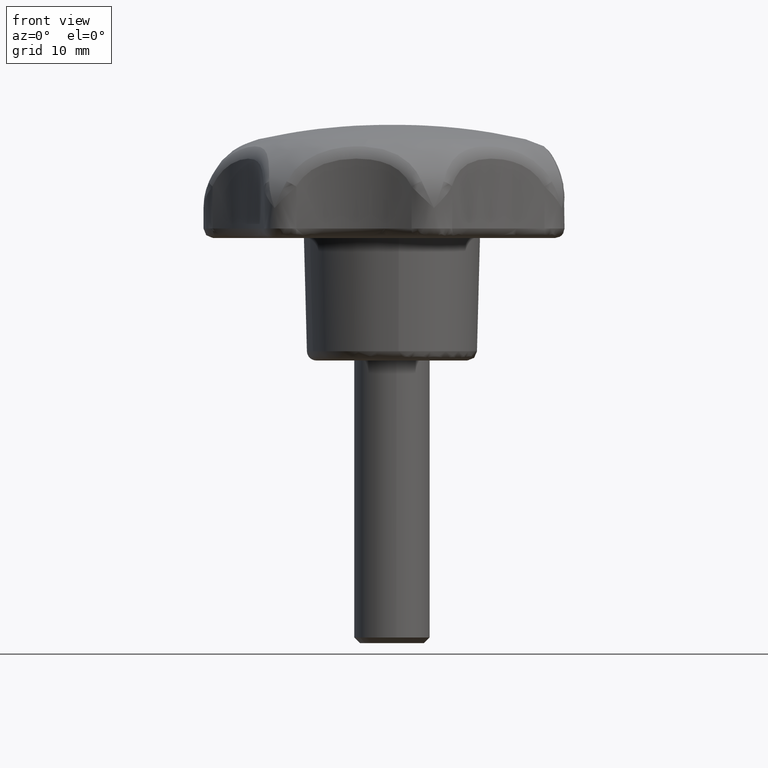
[diagram: clean part render]
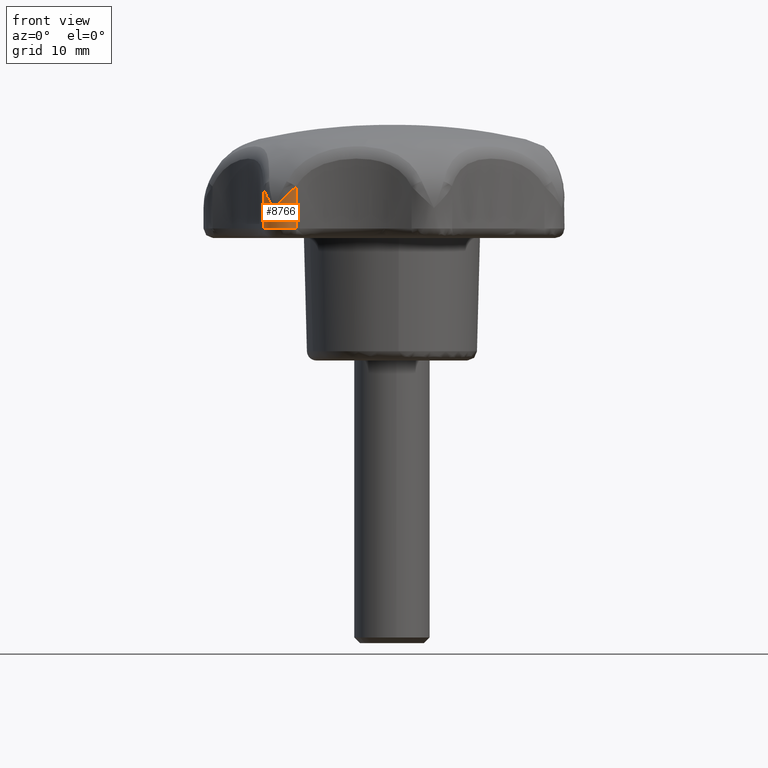
[diagram: same view with one face highlighted and labeled with its STEP entity id]
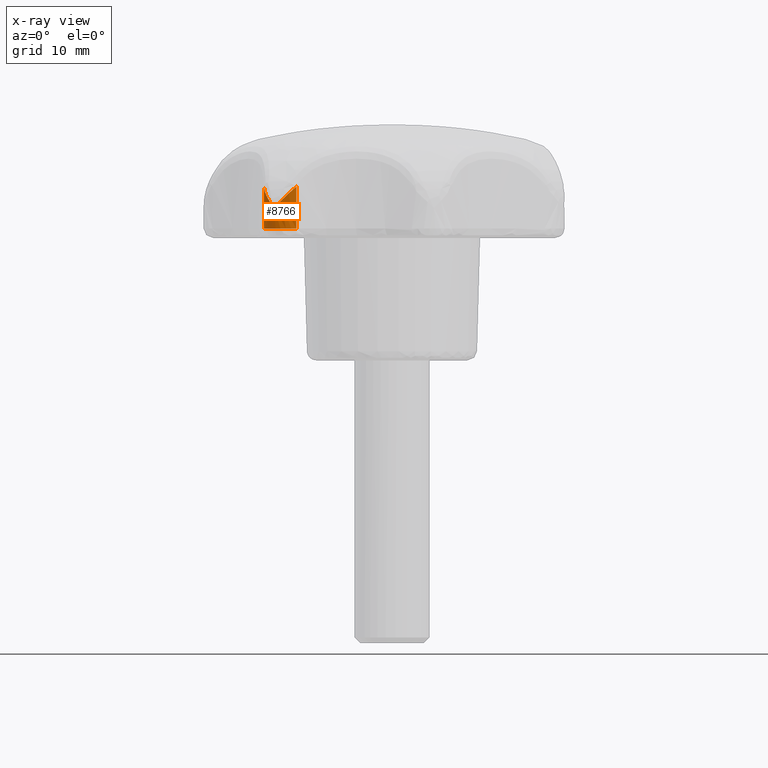
[diagram: x-ray of the same camera — body ghosted, the highlighted face saturated]
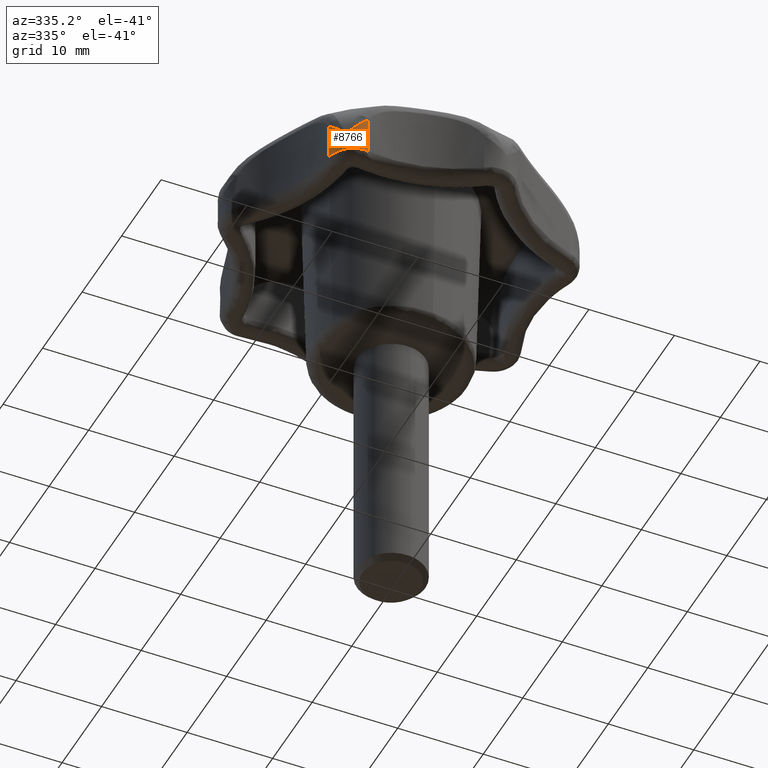
[diagram: same view with one face highlighted and labeled with its STEP entity id]
A machine part, front view. The second image highlights one B-rep face of the part: STEP entity #8766.
The next image is the same camera in x-ray: the body ghosted, the highlighted face saturated — about 0% of this face is hidden behind the body in this view.
A second angle (auxiliary view) of the same face is appended — the face is thin or edge-on in the first view.
In plain terms, the highlighted face is a freeform B-spline surface patch.
Its self-contained STEP definition (entity closure, byte-faithful):
#2999=CARTESIAN_POINT('',(-12.469796110596880,-15.636630136820401,16.169530556264149));
#3000=VERTEX_POINT('',#2999);
#4473=CARTESIAN_POINT('',(-13.591752036076240,-13.504196258204500,14.000000000000121));
#4474=VERTEX_POINT('',#4473);
#4601=CARTESIAN_POINT('',(-10.141168479451681,-16.255944724024001,14.000000000000121));
#4602=VERTEX_POINT('',#4601);
#4616=CARTESIAN_POINT('',(-13.591752036076240,-13.504196258204500,14.000000000000121));
#4617=CARTESIAN_POINT('',(-13.498322335291835,-14.816408319784387,14.000000000000124));
#4618=CARTESIAN_POINT('',(-12.469796501613320,-15.636630370817020,14.000000000000121));
#4619=CARTESIAN_POINT('',(-11.441270667934816,-16.456852421849650,14.000000000000124));
#4620=CARTESIAN_POINT('',(-10.141168479451681,-16.255944724024008,14.000000000000121));
#4628=(BOUNDED_CURVE()B_SPLINE_CURVE(2,(#4616,#4617,#4618,#4619,#4620),.UNSPECIFIED.,.F.,.U.)B_SPLINE_CURVE_WITH_KNOTS((3,2,3),(0.0,0.500000000000000,1.0),.UNSPECIFIED.)CURVE()GEOMETRIC_REPRESENTATION_ITEM()RATIONAL_B_SPLINE_CURVE((1.0,0.915816898037475,1.0,0.915816898037475,1.0))REPRESENTATION_ITEM(''));
#4629=EDGE_CURVE('',#4474,#4602,#4628,.T.);
#5797=CARTESIAN_POINT('',(-10.141168479451681,-16.255944724024001,18.449533153621850));
#5798=VERTEX_POINT('',#5797);
#5914=CARTESIAN_POINT('',(-10.141168479451681,-16.255944724024001,18.449533153621850));
#5915=CARTESIAN_POINT('',(-10.354126604174770,-16.288853610854321,18.267838745826140));
#5916=CARTESIAN_POINT('',(-10.565012132754941,-16.298146515575660,18.084698521185800));
#5917=CARTESIAN_POINT('',(-10.876583213369390,-16.280107634169870,17.805843780220581));
#5918=CARTESIAN_POINT('',(-10.979647647345161,-16.268729395671279,17.712203096207048));
#5919=CARTESIAN_POINT('',(-11.183895989285009,-16.235450066384320,17.523204775303000));
#5920=CARTESIAN_POINT('',(-11.285312375749760,-16.213468863683872,17.427618164018760));
#5921=CARTESIAN_POINT('',(-11.484093333275061,-16.159549121817061,17.236154672637909));
#5922=CARTESIAN_POINT('',(-11.581611486910530,-16.127611810706892,17.140145429538471));
#5923=CARTESIAN_POINT('',(-11.772665489592219,-16.054061012878890,16.947239325337449));
#5924=CARTESIAN_POINT('',(-11.866198194692309,-16.012428883802571,16.850337200536170));
#5925=CARTESIAN_POINT('',(-12.048051745418640,-15.920127098384960,16.656319770953509));
#5926=CARTESIAN_POINT('',(-12.136525515175171,-15.869386075079580,16.559044973050081));
#5927=CARTESIAN_POINT('',(-12.264891822250201,-15.786828690228250,16.413008731252869));
#5928=CARTESIAN_POINT('',(-12.306964153177310,-15.758231443261980,16.364302362240920));
#5929=CARTESIAN_POINT('',(-12.368922733139829,-15.713774455181071,16.291218219845579));
#5930=CARTESIAN_POINT('',(-12.389385128926060,-15.698694389366420,16.266853525544281));
#5931=CARTESIAN_POINT('',(-12.419774489696620,-15.675697241202020,16.230290226403369));
#5932=CARTESIAN_POINT('',(-12.429855374681409,-15.667967248826180,16.218101976534381));
#5933=CARTESIAN_POINT('',(-12.444881377857630,-15.656293345156580,16.199791815764090));
#5934=CARTESIAN_POINT('',(-12.449877659798210,-15.652386099382401,16.193688501373369));
#5935=CARTESIAN_POINT('',(-12.459789286628061,-15.644584503015880,16.181407785055860));
#5936=CARTESIAN_POINT('',(-12.464776361736799,-15.640633798675800,16.175427351803460));
#5937=CARTESIAN_POINT('',(-12.469796110596880,-15.636630136820401,16.169530556264149));
#5938=B_SPLINE_CURVE_WITH_KNOTS('',3,(#5914,#5915,#5916,#5917,#5918,#5919,#5920,#5921,#5922,#5923,#5924,#5925,#5926,#5927,#5928,#5929,#5930,#5931,#5932,#5933,#5934,#5935,#5936,#5937),.UNSPECIFIED.,.F.,.U.,(4,2,2,2,2,2,2,2,2,2,2,4),(0.0,0.249999999999999,0.374999999999999,0.499999999999998,0.624999999999998,0.749999999999997,0.874999999999996,0.937499999999997,0.968749999999998,0.984375000000000,0.992187500000000,1.0),.UNSPECIFIED.);
#5939=EDGE_CURVE('',#5798,#3000,#5938,.T.);
#8201=CARTESIAN_POINT('',(-13.591752036076240,-13.504196258204500,18.449533332060550));
#8202=VERTEX_POINT('',#8201);
#8384=CARTESIAN_POINT('',(-12.469796110596880,-15.636630136820401,16.169530556264149));
#8385=CARTESIAN_POINT('',(-12.474816392004980,-15.632627141915791,16.175427352270450));
#8386=CARTESIAN_POINT('',(-12.479777773028740,-15.628644217426260,16.181407786059740));
#8387=CARTESIAN_POINT('',(-12.489589312562060,-15.620717113854420,16.193688503379249));
#8388=CARTESIAN_POINT('',(-12.494510373355871,-15.616715542896740,16.199791818274139));
#8389=CARTESIAN_POINT('',(-12.509235189658160,-15.604663960283560,16.218101980556892));
#8390=CARTESIAN_POINT('',(-12.519014583927010,-15.596555908808130,16.230290231434950));
#8391=CARTESIAN_POINT('',(-12.548197417488099,-15.572045818272040,16.266853533603079));
#8392=CARTESIAN_POINT('',(-12.567452707942170,-15.555452086838001,16.291218229921530));
#8393=CARTESIAN_POINT('',(-12.624582153372440,-15.504939545313670,16.364302378379769));
#8394=CARTESIAN_POINT('',(-12.661824385772190,-15.470285539449980,16.413008751454040));
#8395=CARTESIAN_POINT('',(-12.770876085868281,-15.363508383060930,16.559045005224821));
#8396=CARTESIAN_POINT('',(-12.840032198427760,-15.288543769797799,16.656319811298829));
#8397=CARTESIAN_POINT('',(-12.970486019415731,-15.131788734698530,16.850337256814122));
#8398=CARTESIAN_POINT('',(-13.031887334444020,-15.049865103357650,16.947239389566089));
#8399=CARTESIAN_POINT('',(-13.146107584759079,-14.879967801293580,17.140145509388411));
#8400=CARTESIAN_POINT('',(-13.198943995442480,-14.792001343968240,17.236154760207270));
#8401=CARTESIAN_POINT('',(-13.295744787656171,-14.610202494961380,17.427618266926778));
#8402=CARTESIAN_POINT('',(-13.339742147217621,-14.516220098117730,17.523204885773360));
#8403=CARTESIAN_POINT('',(-13.417636629149429,-14.324498018270621,17.712203221175510));
#8404=CARTESIAN_POINT('',(-13.451663586243280,-14.226549511962871,17.805843912229481));
#8405=CARTESIAN_POINT('',(-13.538581282412460,-13.926804169455400,18.084698673816000));
#8406=CARTESIAN_POINT('',(-13.576447810971340,-13.719138095802609,18.267838911534291));
#8407=CARTESIAN_POINT('',(-13.591752036076240,-13.504196258204500,18.449533332060550));
#8408=B_SPLINE_CURVE_WITH_KNOTS('',3,(#8384,#8385,#8386,#8387,#8388,#8389,#8390,#8391,#8392,#8393,#8394,#8395,#8396,#8397,#8398,#8399,#8400,#8401,#8402,#8403,#8404,#8405,#8406,#8407),.UNSPECIFIED.,.F.,.U.,(4,2,2,2,2,2,2,2,2,2,2,4),(0.0,0.007812500000001,0.015625000000001,0.031250000000000,0.062500000000001,0.125000000000001,0.250000000000001,0.375000000000001,0.500000000000001,0.625000000000001,0.750000000000002,1.0),.UNSPECIFIED.);
#8409=EDGE_CURVE('',#3000,#8202,#8408,.T.);
#8584=CARTESIAN_POINT('',(-10.141168479451681,-16.255944724024001,18.449533153621850));
#8585=CARTESIAN_POINT('',(-10.141168479451681,-16.255944724024001,14.000000000000121));
#8586=QUASI_UNIFORM_CURVE('',1,(#8584,#8585),.UNSPECIFIED.,.F.,.U.);
#8587=EDGE_CURVE('',#5798,#4602,#8586,.T.);
#8619=CARTESIAN_POINT('',(-13.591752036076240,-13.504196258204500,18.449533332060550));
#8620=CARTESIAN_POINT('',(-13.591752036076240,-13.504196258204500,14.000000000000121));
#8621=QUASI_UNIFORM_CURVE('',1,(#8619,#8620),.UNSPECIFIED.,.F.,.U.);
#8622=EDGE_CURVE('',#8202,#4474,#8621,.T.);
#8745=CARTESIAN_POINT('',(-13.598197090225961,-13.373465714855209,18.560771665362061));
#8746=CARTESIAN_POINT('',(-13.598197090225961,-13.373465714855209,13.885980708366070));
#8747=CARTESIAN_POINT('',(-13.500080356769985,-16.947379918605321,18.560771665362068));
#8748=CARTESIAN_POINT('',(-13.500080356769985,-16.947379918605321,13.885980708366072));
#8749=CARTESIAN_POINT('',(-9.997499732279689,-16.230150110178482,18.560771665362061));
#8750=CARTESIAN_POINT('',(-9.997499732279689,-16.230150110178482,13.885980708366070));
#8758=(BOUNDED_SURFACE()B_SPLINE_SURFACE(1,2,((#8745,#8747,#8749),(#8746,#8748,#8750)),.UNSPECIFIED.,.F.,.F.,.U.)B_SPLINE_SURFACE_WITH_KNOTS((2,2),(3,3),(0.0,4.674790956995993),(0.0,5.595691897859982),.UNSPECIFIED.)GEOMETRIC_REPRESENTATION_ITEM()RATIONAL_B_SPLINE_SURFACE(((1.0,0.642787609686540,1.0),(1.0,0.642787609686540,1.0)))REPRESENTATION_ITEM('')SURFACE());
#8759=ORIENTED_EDGE('',*,*,#8622,.T.);
#8760=ORIENTED_EDGE('',*,*,#4629,.T.);
#8761=ORIENTED_EDGE('',*,*,#8587,.F.);
#8762=ORIENTED_EDGE('',*,*,#5939,.T.);
#8763=ORIENTED_EDGE('',*,*,#8409,.T.);
#8764=EDGE_LOOP('',(#8759,#8760,#8761,#8762,#8763));
#8765=FACE_OUTER_BOUND('',#8764,.T.);
#8766=ADVANCED_FACE('',(#8765),#8758,.T.);